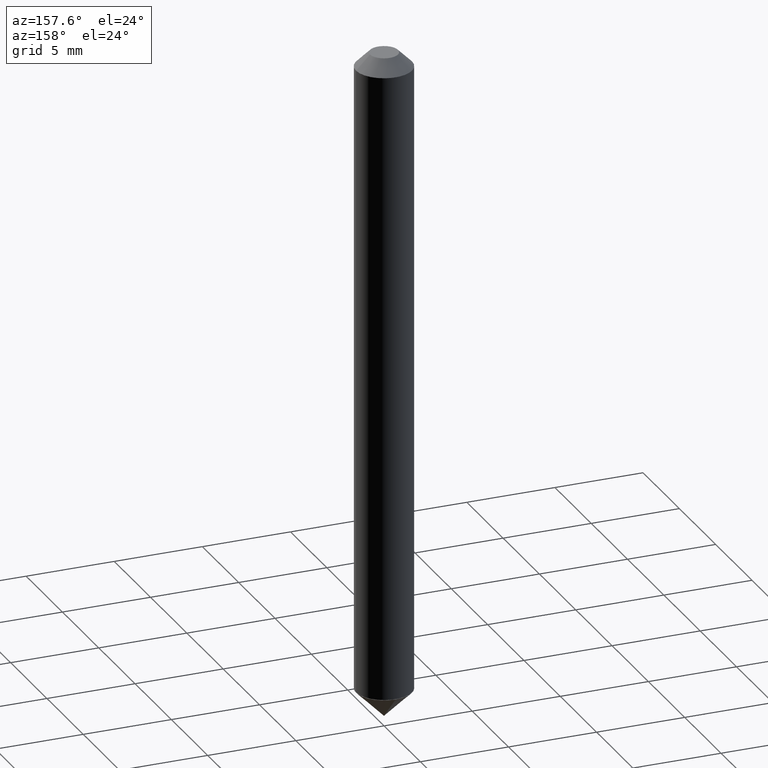
[diagram: clean part render]
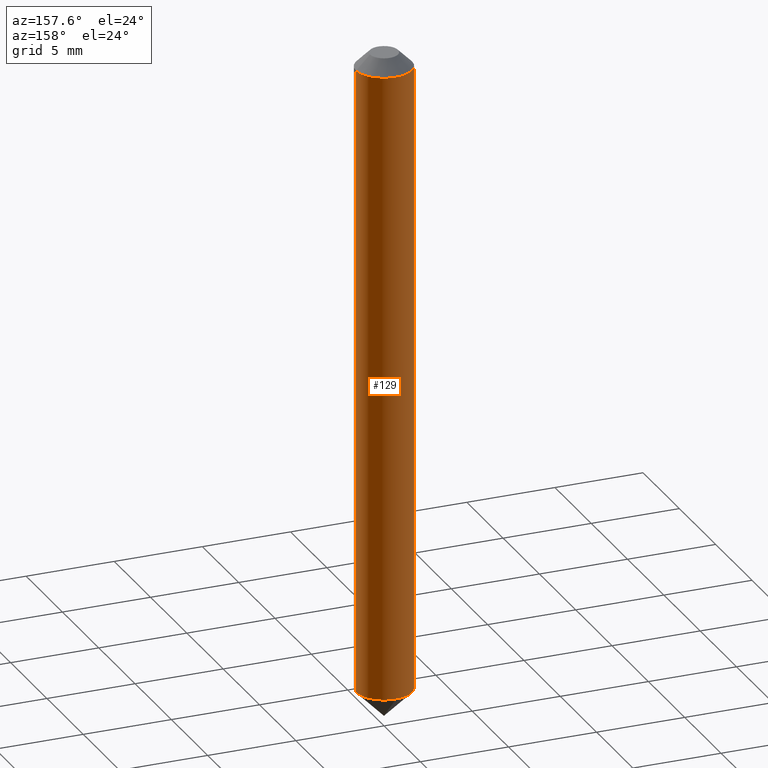
[diagram: same view with one face highlighted and labeled with its STEP entity id]
A machine part, auxiliary view. The second image highlights one B-rep face of the part: STEP entity #129.
In plain terms, the highlighted cylindrical surface (edge-blend (fillet) strip) has radius 1.5875 mm, axis along (-0, 0, 1).
Its self-contained STEP definition (entity closure, byte-faithful):
#3 = VECTOR ( 'NONE', #85, 39.37007874015748143 ) ;
#15 = VERTEX_POINT ( 'NONE', #323 ) ;
#35 = DIRECTION ( 'NONE',  ( 1.000000000000000000, -6.982962677686266711E-15, 4.876176775795935793E-29 ) ) ;
#49 = AXIS2_PLACEMENT_3D ( 'NONE', #318, #121, #271 ) ;
#56 = ORIENTED_EDGE ( 'NONE', *, *, #304, .F. ) ;
#61 = DIRECTION ( 'NONE',  ( 1.000000000000000000, -6.982962677686259611E-15, 0.000000000000000000 ) ) ;
#85 = DIRECTION ( 'NONE',  ( -2.445468806185136877E-29, 3.491481338843145188E-15, 1.000000000000000000 ) ) ;
#86 = AXIS2_PLACEMENT_3D ( 'NONE', #339, #310, #35 ) ;
#100 = CARTESIAN_POINT ( 'NONE',  ( -0.06250000000000008327, 4.440892098500632078E-16, -3.074334431409319967E-30 ) ) ;
#121 = DIRECTION ( 'NONE',  ( -2.445468806185136597E-29, 3.491481338843145583E-15, 1.000000000000000000 ) ) ;
#129 = ADVANCED_FACE ( 'NONE', ( #335 ), #229, .T. ) ;
#142 = EDGE_CURVE ( 'NONE', #15, #266, #185, .T. ) ;
#182 = VERTEX_POINT ( 'NONE', #368 ) ;
#185 = CIRCLE ( 'NONE', #194, 0.06250000000000016653 ) ;
#194 = AXIS2_PLACEMENT_3D ( 'NONE', #328, #366, #61 ) ;
#218 = CARTESIAN_POINT ( 'NONE',  ( -0.06250000000000016653, -4.571423733398114352E-15, -1.436499999999999888 ) ) ;
#219 = ORIENTED_EDGE ( 'NONE', *, *, #382, .T. ) ;
#229 = CYLINDRICAL_SURFACE ( 'NONE', #86, 0.06250000000000008327 ) ;
#230 = VECTOR ( 'NONE', #307, 39.37007874015748143 ) ;
#233 = CARTESIAN_POINT ( 'NONE',  ( -0.06250000000000001388, -2.118134370659977963E-15, -0.03120000000000019286 ) ) ;
#234 = ORIENTED_EDGE ( 'NONE', *, *, #142, .T. ) ;
#236 = CARTESIAN_POINT ( 'NONE',  ( 0.06250000000000008327, -4.364351673553922611E-16, 3.047610484872464074E-30 ) ) ;
#240 = LINE ( 'NONE', #236, #3 ) ;
#255 = LINE ( 'NONE', #100, #230 ) ;
#266 = VERTEX_POINT ( 'NONE', #218 ) ;
#271 = DIRECTION ( 'NONE',  ( 1.000000000000000000, -6.982962677686265922E-15, 0.000000000000000000 ) ) ;
#290 = EDGE_CURVE ( 'NONE', #182, #353, #362, .T. ) ;
#293 = EDGE_LOOP ( 'NONE', ( #234, #219, #294, #56 ) ) ;
#294 = ORIENTED_EDGE ( 'NONE', *, *, #290, .F. ) ;
#304 = EDGE_CURVE ( 'NONE', #15, #182, #240, .T. ) ;
#307 = DIRECTION ( 'NONE',  ( -2.445468806185136877E-29, 3.491481338843145188E-15, 1.000000000000000000 ) ) ;
#310 = DIRECTION ( 'NONE',  ( -2.445468806185136597E-29, 3.491481338843145583E-15, 1.000000000000000000 ) ) ;
#318 = CARTESIAN_POINT ( 'NONE',  ( 7.629862675297673947E-31, -1.089342177719068147E-16, -0.03120000000000019286 ) ) ;
#323 = CARTESIAN_POINT ( 'NONE',  ( 0.06250000000000016653, -5.451948110603571004E-15, -1.436499999999999888 ) ) ;
#328 = CARTESIAN_POINT ( 'NONE',  ( 3.512915940084948255E-29, -5.015512943248178546E-15, -1.436499999999999888 ) ) ;
#335 = FACE_OUTER_BOUND ( 'NONE', #293, .T. ) ;
#339 = CARTESIAN_POINT ( 'NONE',  ( 0.000000000000000000, 0.000000000000000000, 0.000000000000000000 ) ) ;
#353 = VERTEX_POINT ( 'NONE', #233 ) ;
#362 = CIRCLE ( 'NONE', #49, 0.06250000000000001388 ) ;
#366 = DIRECTION ( 'NONE',  ( -2.445468806185136597E-29, 3.491481338843145583E-15, 1.000000000000000000 ) ) ;
#368 = CARTESIAN_POINT ( 'NONE',  ( 0.06250000000000001388, -5.453693851272985211E-16, -0.03120000000000019286 ) ) ;
#382 = EDGE_CURVE ( 'NONE', #266, #353, #255, .T. ) ;